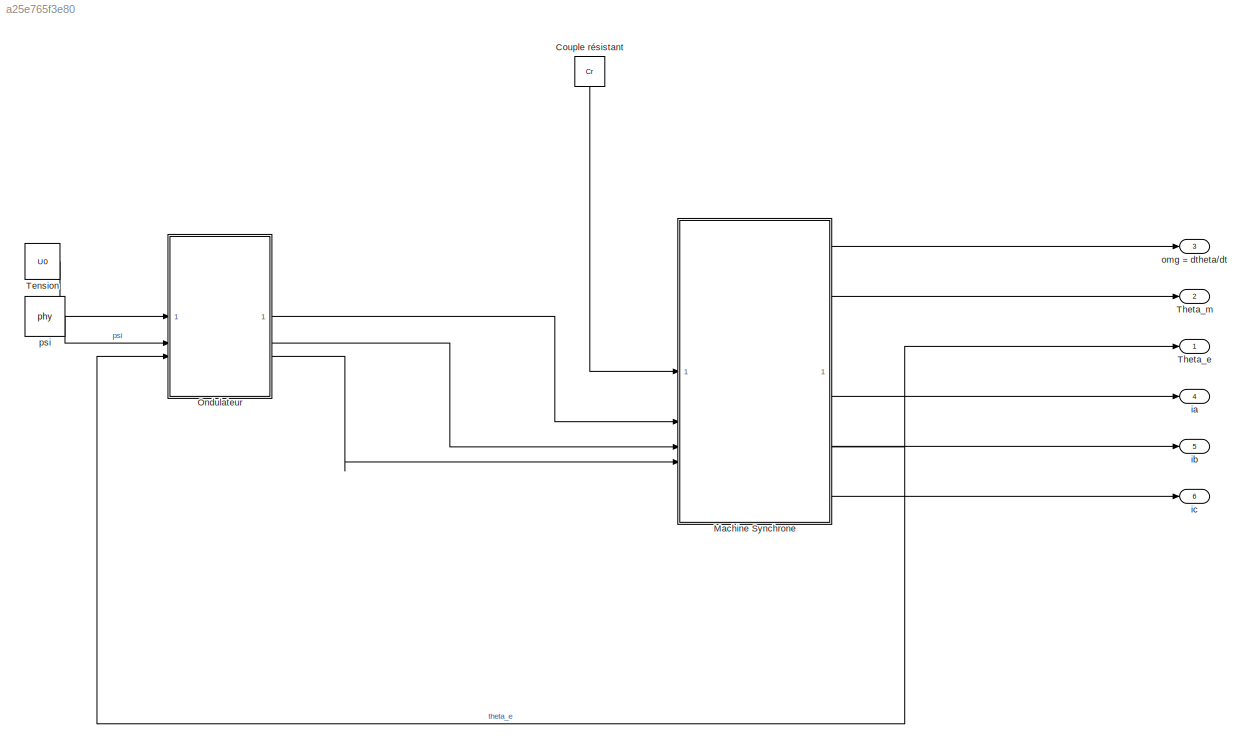
MODEL mdl_a25e765f3e80
KIND model
CONFIG AbsTol = auto
CONFIG EnableMultiTasking = off
CONFIG FixedStep = auto
CONFIG InitFcn = U0 = 220;\nphy = pi/4;\n\nR = 0.895;\nL0 = 12.16e-3;\nJ = 0.2;\nK = 0.9;\np = 3;\nphi_f = K/p;
CONFIG MaxStep = auto
CONFIG MinStep = auto
CONFIG RelTol = 1e-3
CONFIG SampleTimeConstraint = Unconstrained
CONFIG SolverName = VariableStepAuto
CONFIG StartFcn = TP3_config
CONFIG StartTime = 0.0
CONFIG StopTime = 10.0
BLOCK [Constant] Couple résistant
  NameLocation = left
  Value = Cr
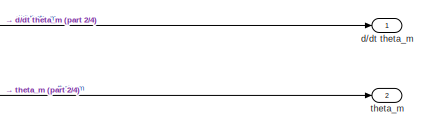
[diagram: Machine Synchrone - part 1/4, top right region]
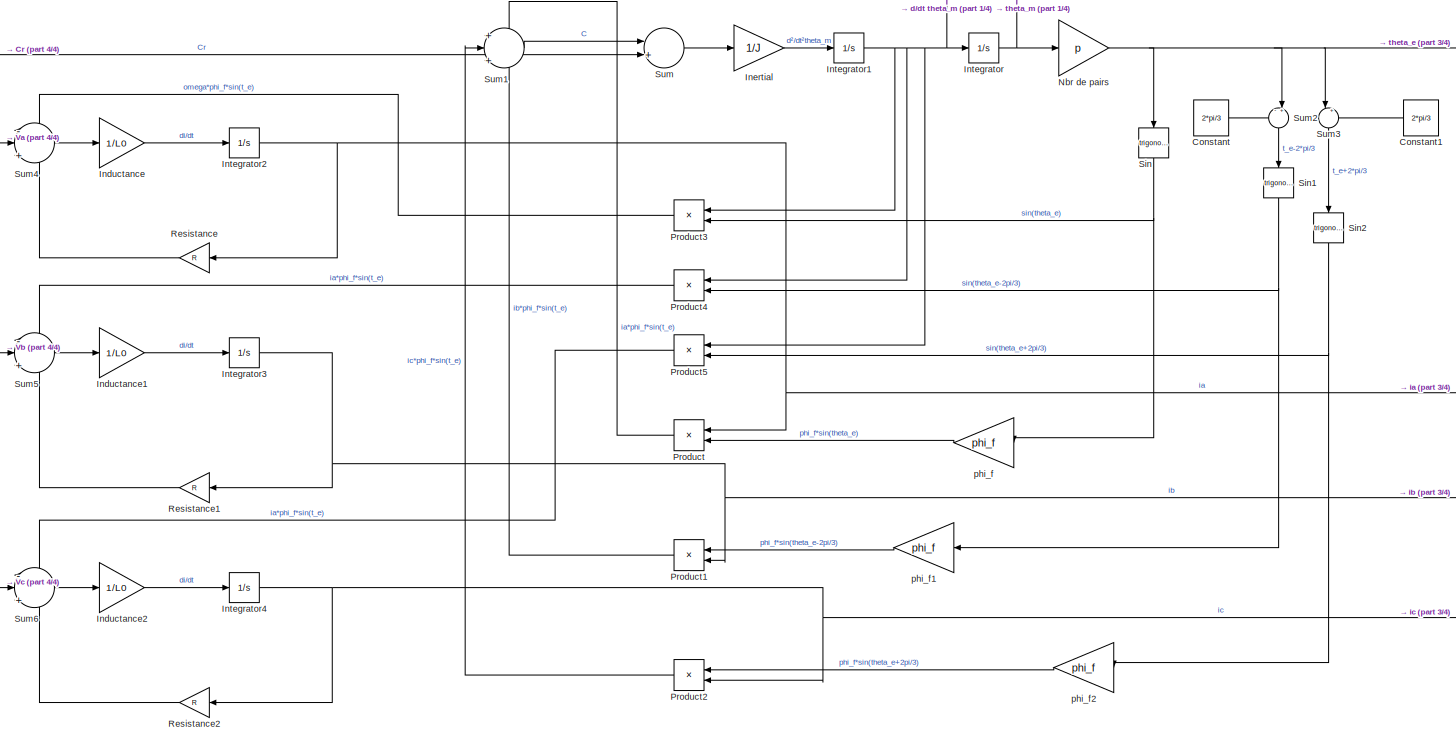
[diagram: Machine Synchrone - part 2/4, most of the canvas]
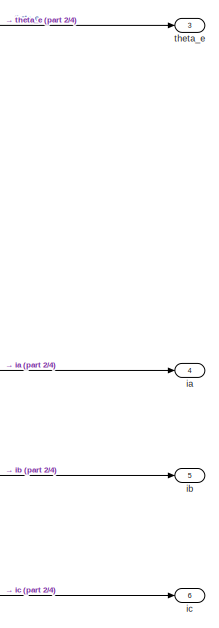
[diagram: Machine Synchrone - part 3/4, middle right region]
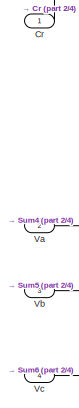
[diagram: Machine Synchrone - part 4/4, middle left region]
BLOCK [SubSystem] Machine Synchrone
BLOCK [Constant] Machine Synchrone/Constant
  Value = 2*pi/3
BLOCK [Constant] Machine Synchrone/Constant1
  NameLocation = top
  Value = 2*pi/3
BLOCK [Inport] Machine Synchrone/Cr
BLOCK [Gain] Machine Synchrone/Inductance
  Gain = 1/L0
BLOCK [Gain] Machine Synchrone/Inductance1
  Gain = 1/L0
BLOCK [Gain] Machine Synchrone/Inductance2
  Gain = 1/L0
BLOCK [Gain] Machine Synchrone/Inertial
  Gain = 1/J
BLOCK [Integrator] Machine Synchrone/Integrator
BLOCK [Integrator] Machine Synchrone/Integrator1
BLOCK [Integrator] Machine Synchrone/Integrator2
BLOCK [Integrator] Machine Synchrone/Integrator3
BLOCK [Integrator] Machine Synchrone/Integrator4
BLOCK [Gain] Machine Synchrone/Nbr de pairs
  Gain = p
BLOCK [Product] Machine Synchrone/Product
  NameLocation = top
BLOCK [Product] Machine Synchrone/Product1
  NameLocation = top
BLOCK [Product] Machine Synchrone/Product2
  NameLocation = top
BLOCK [Product] Machine Synchrone/Product3
  NameLocation = top
BLOCK [Product] Machine Synchrone/Product4
  NameLocation = top
BLOCK [Product] Machine Synchrone/Product5
  NameLocation = top
BLOCK [Gain] Machine Synchrone/Resistance
  Gain = R
  NameLocation = top
BLOCK [Gain] Machine Synchrone/Resistance1
  Gain = R
  NameLocation = top
BLOCK [Gain] Machine Synchrone/Resistance2
  Gain = R
  NameLocation = top
BLOCK [Trigonometry] Machine Synchrone/Sin
  NameLocation = left
BLOCK [Trigonometry] Machine Synchrone/Sin1
  NameLocation = left
BLOCK [Trigonometry] Machine Synchrone/Sin2
  NameLocation = left
BLOCK [Sum] Machine Synchrone/Sum
  Inputs = |+-
BLOCK [Sum] Machine Synchrone/Sum1
  Inputs = +|+|+
BLOCK [Sum] Machine Synchrone/Sum2
  Inputs = -+|
  NameLocation = left
BLOCK [Sum] Machine Synchrone/Sum3
  Inputs = |++
  NameLocation = left
BLOCK [Sum] Machine Synchrone/Sum4
  Inputs = -|+|-
BLOCK [Sum] Machine Synchrone/Sum5
  Inputs = -|+|-
BLOCK [Sum] Machine Synchrone/Sum6
  Inputs = -|+|-
BLOCK [Inport] Machine Synchrone/Va
  Port = 2
BLOCK [Inport] Machine Synchrone/Vb
  Port = 3
BLOCK [Inport] Machine Synchrone/Vc
  Port = 4
BLOCK [Outport] Machine Synchrone/d//dt theta_m
BLOCK [Outport] Machine Synchrone/ia
  Port = 4
BLOCK [Outport] Machine Synchrone/ib
  Port = 5
BLOCK [Outport] Machine Synchrone/ic
  Port = 6
BLOCK [Gain] Machine Synchrone/phi_f
  Gain = phi_f
  NameLocation = top
BLOCK [Gain] Machine Synchrone/phi_f1
  Gain = phi_f
  NameLocation = top
BLOCK [Gain] Machine Synchrone/phi_f2
  Gain = phi_f
  NameLocation = top
BLOCK [Outport] Machine Synchrone/theta_e
  Port = 3
BLOCK [Outport] Machine Synchrone/theta_m
  Port = 2
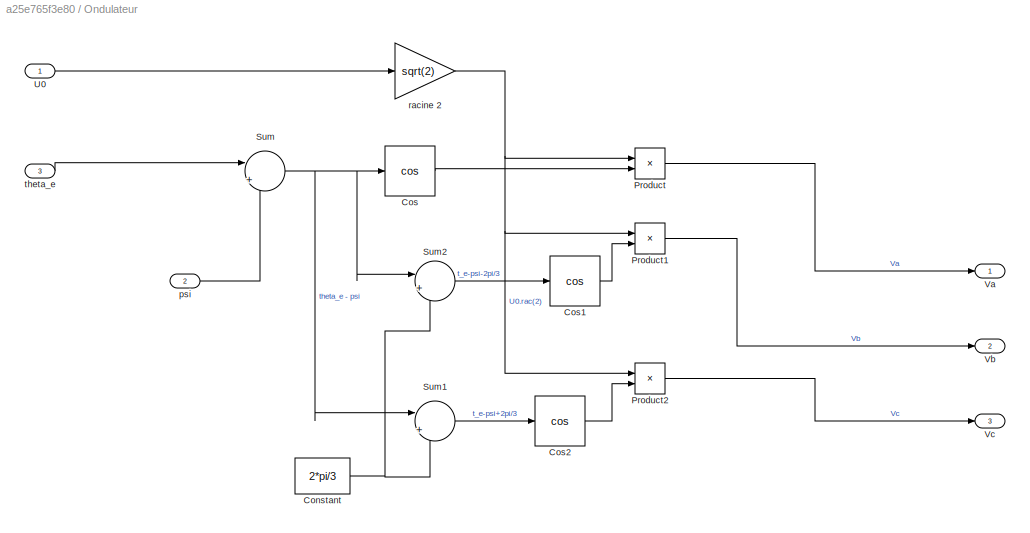
BLOCK [SubSystem] Ondulateur 
BLOCK [Constant] Ondulateur /Constant
  Value = 2*pi/3
BLOCK [Trigonometry] Ondulateur /Cos
  Operator = cos
BLOCK [Trigonometry] Ondulateur /Cos1
  Operator = cos
BLOCK [Trigonometry] Ondulateur /Cos2
  Operator = cos
BLOCK [Product] Ondulateur /Product
BLOCK [Product] Ondulateur /Product1
BLOCK [Product] Ondulateur /Product2
BLOCK [Sum] Ondulateur /Sum
  Inputs = |+-
BLOCK [Sum] Ondulateur /Sum1
  Inputs = |++
BLOCK [Sum] Ondulateur /Sum2
  Inputs = |+-
BLOCK [Inport] Ondulateur /U0
BLOCK [Outport] Ondulateur /Va
BLOCK [Outport] Ondulateur /Vb
  Port = 2
BLOCK [Outport] Ondulateur /Vc
  Port = 3
BLOCK [Inport] Ondulateur /psi
  Port = 2
BLOCK [Gain] Ondulateur /racine 2
  Gain = sqrt(2)
BLOCK [Inport] Ondulateur /theta_e
  Port = 3
BLOCK [Constant] Tension
  Value = U0
BLOCK [Outport] Theta_e
BLOCK [Outport] Theta_m
  Port = 2
BLOCK [Outport] ia
  Port = 4
BLOCK [Outport] ib
  Port = 5
BLOCK [Outport] ic
  Port = 6
BLOCK [Outport] omg = dtheta//dt
  Port = 3
BLOCK [Constant] psi
  Value = phy
LINE Couple résistant:1 -> Machine Synchrone:1
LINE Machine Synchrone/Constant1:1 -> Machine Synchrone/Sum3:2
LINE Machine Synchrone/Constant:1 -> Machine Synchrone/Sum2:1
LINE Machine Synchrone/Cr:1 -> Machine Synchrone/Sum:2
LINE Machine Synchrone/Inductance1:1 -> Machine Synchrone/Integrator3:1
LINE Machine Synchrone/Inductance2:1 -> Machine Synchrone/Integrator4:1
LINE Machine Synchrone/Inductance:1 -> Machine Synchrone/Integrator2:1
LINE Machine Synchrone/Inertial:1 -> Machine Synchrone/Integrator1:1
NET Machine Synchrone/Integrator1:1 -> Machine Synchrone/Integrator:1, Machine Synchrone/Product3:1, Machine Synchrone/Product4:1, Machine Synchrone/Product5:1, Machine Synchrone/d//dt theta_m:1
NET Machine Synchrone/Integrator2:1 -> Machine Synchrone/Product:1, Machine Synchrone/Resistance:1, Machine Synchrone/ia:1
NET Machine Synchrone/Integrator3:1 -> Machine Synchrone/Product1:2, Machine Synchrone/Resistance1:1, Machine Synchrone/ib:1
NET Machine Synchrone/Integrator4:1 -> Machine Synchrone/Product2:2, Machine Synchrone/Resistance2:1, Machine Synchrone/ic:1
NET Machine Synchrone/Integrator:1 -> Machine Synchrone/Nbr de pairs:1, Machine Synchrone/theta_m:1
NET Machine Synchrone/Nbr de pairs:1 -> Machine Synchrone/Sin:1, Machine Synchrone/Sum2:2, Machine Synchrone/Sum3:1, Machine Synchrone/theta_e:1
LINE Machine Synchrone/Product1:1 -> Machine Synchrone/Sum1:3
LINE Machine Synchrone/Product2:1 -> Machine Synchrone/Sum1:2
LINE Machine Synchrone/Product3:1 -> Machine Synchrone/Sum4:1
LINE Machine Synchrone/Product4:1 -> Machine Synchrone/Sum5:1
LINE Machine Synchrone/Product5:1 -> Machine Synchrone/Sum6:1
LINE Machine Synchrone/Product:1 -> Machine Synchrone/Sum1:1
LINE Machine Synchrone/Resistance1:1 -> Machine Synchrone/Sum5:3
LINE Machine Synchrone/Resistance2:1 -> Machine Synchrone/Sum6:3
LINE Machine Synchrone/Resistance:1 -> Machine Synchrone/Sum4:3
NET Machine Synchrone/Sin1:1 -> Machine Synchrone/Product4:2, Machine Synchrone/phi_f1:1
NET Machine Synchrone/Sin2:1 -> Machine Synchrone/Product5:2, Machine Synchrone/phi_f2:1
NET Machine Synchrone/Sin:1 -> Machine Synchrone/Product3:2, Machine Synchrone/phi_f:1
LINE Machine Synchrone/Sum1:1 -> Machine Synchrone/Sum:1
LINE Machine Synchrone/Sum2:1 -> Machine Synchrone/Sin1:1
LINE Machine Synchrone/Sum3:1 -> Machine Synchrone/Sin2:1
LINE Machine Synchrone/Sum4:1 -> Machine Synchrone/Inductance:1
LINE Machine Synchrone/Sum5:1 -> Machine Synchrone/Inductance1:1
LINE Machine Synchrone/Sum6:1 -> Machine Synchrone/Inductance2:1
LINE Machine Synchrone/Sum:1 -> Machine Synchrone/Inertial:1
LINE Machine Synchrone/Va:1 -> Machine Synchrone/Sum4:2
LINE Machine Synchrone/Vb:1 -> Machine Synchrone/Sum5:2
LINE Machine Synchrone/Vc:1 -> Machine Synchrone/Sum6:2
LINE Machine Synchrone/phi_f1:1 -> Machine Synchrone/Product1:1
LINE Machine Synchrone/phi_f2:1 -> Machine Synchrone/Product2:1
LINE Machine Synchrone/phi_f:1 -> Machine Synchrone/Product:2
LINE Machine Synchrone:1 -> omg = dtheta//dt:1
LINE Machine Synchrone:2 -> Theta_m:1
NET Machine Synchrone:3 -> Ondulateur :3, Theta_e:1
LINE Machine Synchrone:4 -> ia:1
LINE Machine Synchrone:5 -> ib:1
LINE Machine Synchrone:6 -> ic:1
NET Ondulateur /Constant:1 -> Ondulateur /Sum1:2, Ondulateur /Sum2:2
LINE Ondulateur /Cos1:1 -> Ondulateur /Product1:2
LINE Ondulateur /Cos2:1 -> Ondulateur /Product2:2
LINE Ondulateur /Cos:1 -> Ondulateur /Product:2
LINE Ondulateur /Product1:1 -> Ondulateur /Vb:1
LINE Ondulateur /Product2:1 -> Ondulateur /Vc:1
LINE Ondulateur /Product:1 -> Ondulateur /Va:1
LINE Ondulateur /Sum1:1 -> Ondulateur /Cos2:1
LINE Ondulateur /Sum2:1 -> Ondulateur /Cos1:1
NET Ondulateur /Sum:1 -> Ondulateur /Cos:1, Ondulateur /Sum1:1, Ondulateur /Sum2:1
LINE Ondulateur /U0:1 -> Ondulateur /racine 2:1
LINE Ondulateur /psi:1 -> Ondulateur /Sum:2
NET Ondulateur /racine 2:1 -> Ondulateur /Product1:1, Ondulateur /Product2:1, Ondulateur /Product:1
LINE Ondulateur /theta_e:1 -> Ondulateur /Sum:1
LINE Ondulateur :1 -> Machine Synchrone:2
LINE Ondulateur :2 -> Machine Synchrone:3
LINE Ondulateur :3 -> Machine Synchrone:4
LINE Tension:1 -> Ondulateur :1
LINE psi:1 -> Ondulateur :2
note: NET lines group one-source signal fan-out (src -> all destinations, sorted); 1:1 wires keep LINE
